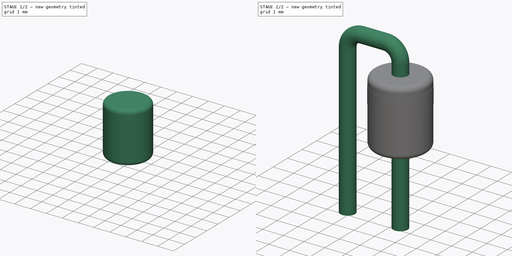
[diagram: build sequence overview — one tinted view per stage of 2, left to right]
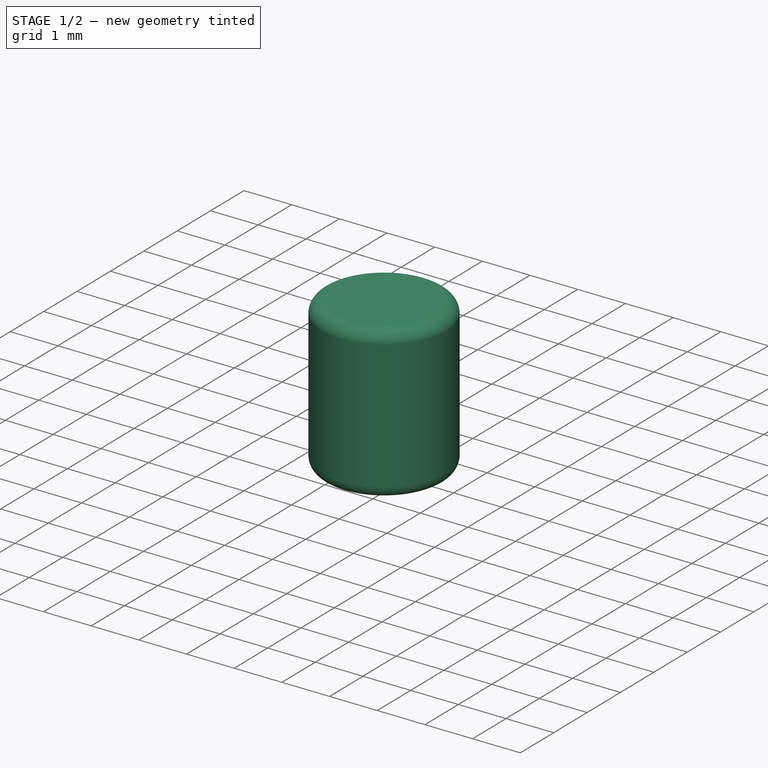
[diagram: stage 1 of 2 — iso view after this stage's code; geometry added in this stage tinted green]
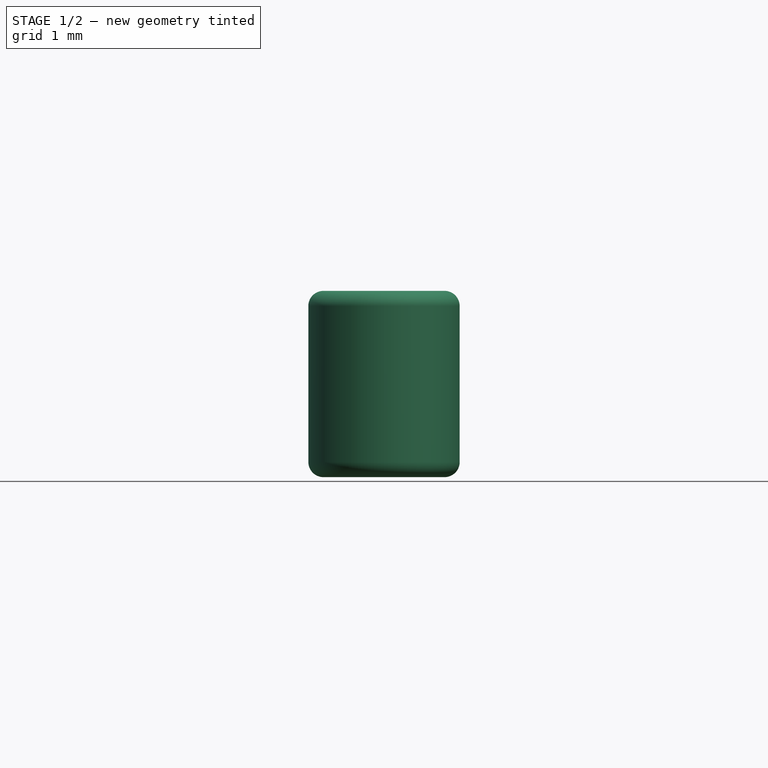
[diagram: stage 1 of 2 — front view after this stage's code; geometry added in this stage tinted green]
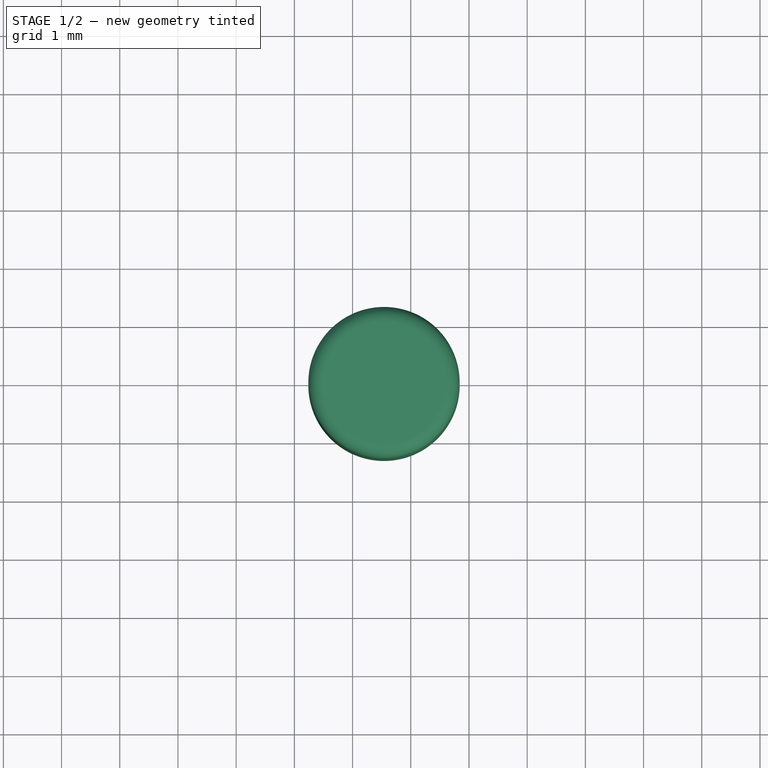
[diagram: stage 1 of 2 — top view after this stage's code; geometry added in this stage tinted green]
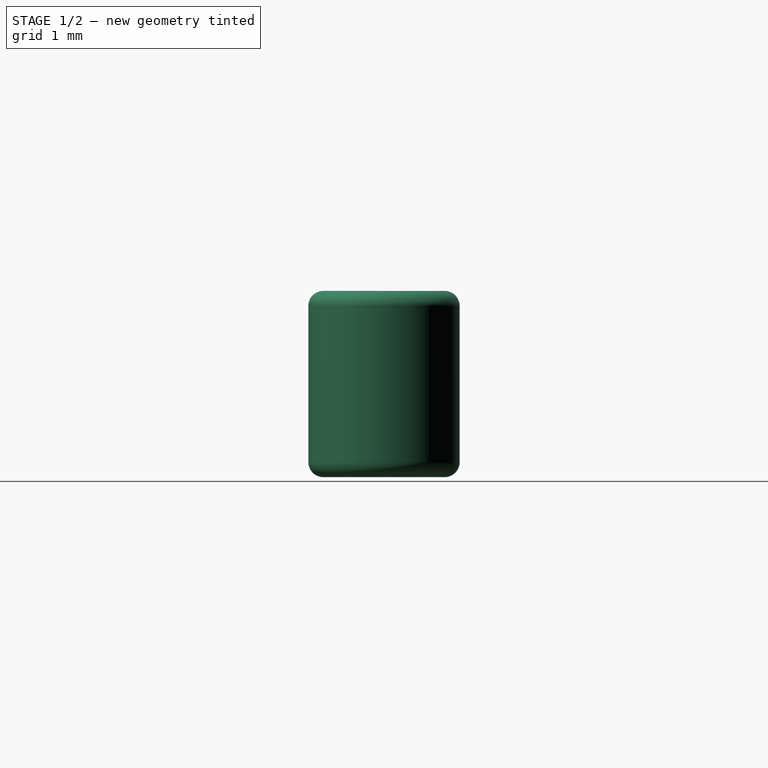
[diagram: stage 1 of 2 — right view after this stage's code; geometry added in this stage tinted green]
FCSTD DOCUMENT  (FreeCAD 0.16R6703 (Git))
Label: Diode_ver_glass_KathodeUp
License: All rights reserved
LicenseURL: http://en.wikipedia.org/wiki/All_rights_reserved
objects: Sketcher::SketchObject×4, PartDesign::Revolution×2, Spreadsheet::Sheet×1, Part::Sweep×1, PartDesign::Fillet×1
note: 10 computed .brp shape members not serialized (recipe doc carries the construction recipe); baked Part::Feature solids carry a one-line shape summary decoded from their .brp

FEATURE [Sketcher::SketchObject] Sketch002
  Placement = pos=(0,0,0) rot=(1,0,0;1.5708rad)
  expr: Constraints[13] = Spreadsheet.RM
  expr: Constraints[9] = Spreadsheet.L
  expr: Constraints[10] = Spreadsheet.d / 2
  sketch-geometry (5):
    g0: LineSegment StartX=2.54 StartY=3.7 StartZ=0 EndX=3.84 EndY=3.7 EndZ=0
    g1: LineSegment StartX=3.84 StartY=3.7 StartZ=0 EndX=3.84 EndY=0.5 EndZ=0
    g2: LineSegment StartX=3.84 StartY=0.5 StartZ=0 EndX=2.54 EndY=0.5 EndZ=0
    g3: LineSegment StartX=2.54 StartY=0.5 StartZ=0 EndX=2.54 EndY=3.7 EndZ=0
    g4: LineSegment [constr] StartX=2.54 StartY=0.5 StartZ=0 EndX=2.54 EndY=11.9134 EndZ=0
  constraints (15):
    c: Coincident(g0,g1)
    c: Coincident(g1,g2)
    c: Coincident(g2,g3)
    c: Coincident(g3,g0)
    c: Horizontal(g0)
    c: Horizontal(g2)
    c: Vertical(g1)
    c: Vertical(g3)
    c: DistanceY(g-1,g2) = 0.5
    c: DistanceY(g1,g1) = 3.2
    c: DistanceX(g0,g0) = 1.3
    c: PointOnObject(g4,g3)
    c: Vertical(g4)
    c: DistanceX(g-1,g4) = 2.54
    c: Coincident(g4,g2)
FEATURE [PartDesign::Revolution] Revolution
  Angle = 360
  Axis = (0,0,11.4134)
  Base = (2.54,0,0.5)
  Placement = pos=(0,0,0) rot=(1,0,0;1.5708rad)
  ReferenceAxis = -> Sketch002 [Axis0]
  Reversed = true
  Sketch = -> Sketch002
FEATURE [PartDesign::Fillet] Fillet
  Base = -> Revolution [Edge1,Edge2]
  Placement = pos=(0,0,0) rot=(1,0,0;1.5708rad)
  Radius = 0.26
  expr: Radius = Spreadsheet.d * 0.1
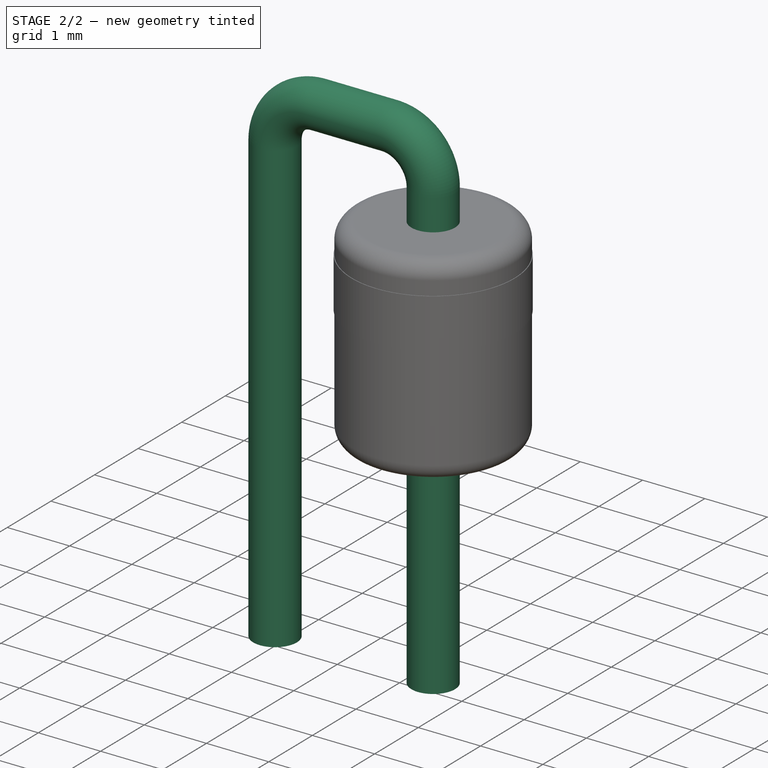
[diagram: stage 2 of 2 — iso view after this stage's code; geometry added in this stage tinted green]
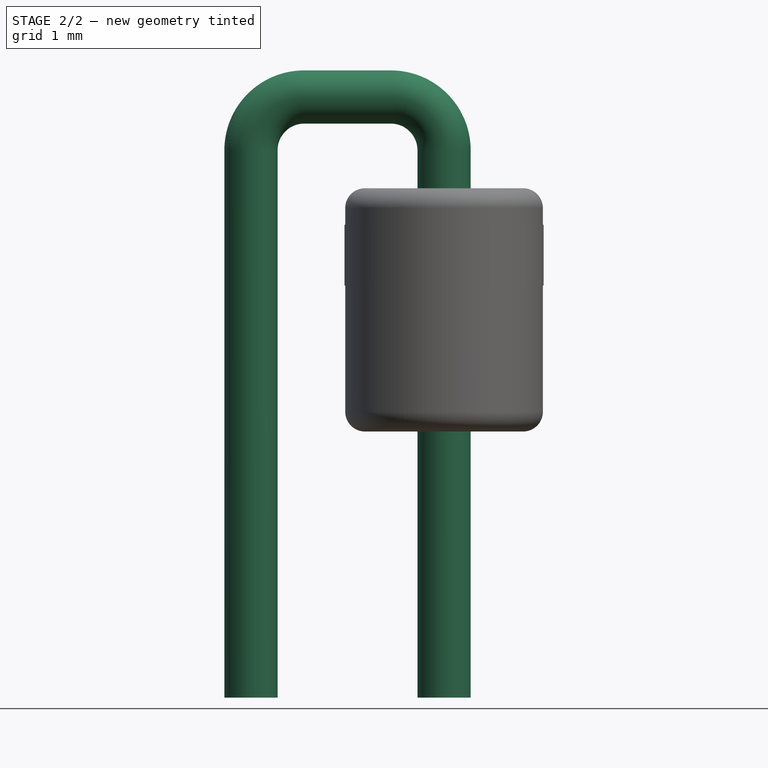
[diagram: stage 2 of 2 — front view after this stage's code; geometry added in this stage tinted green]
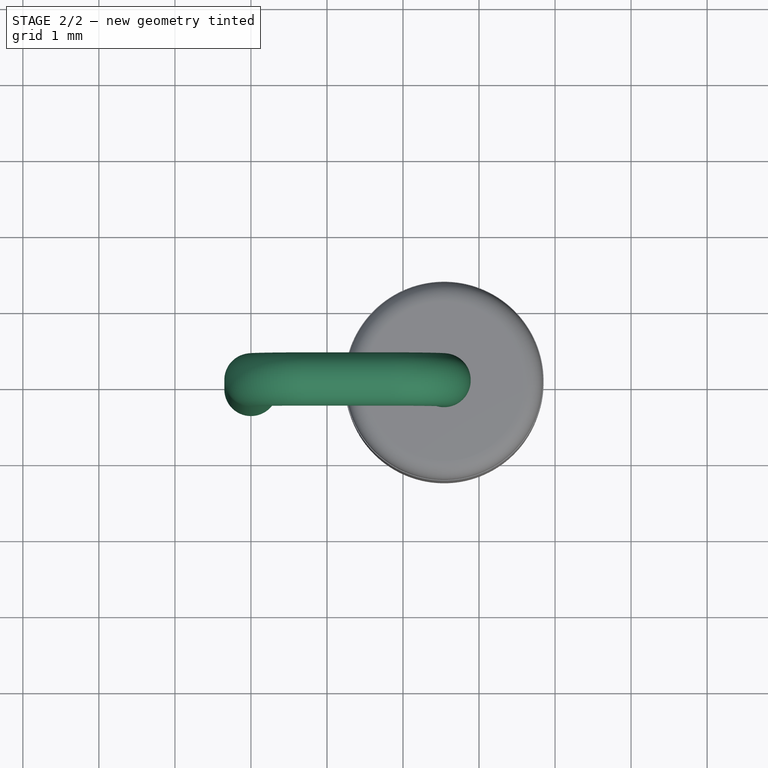
[diagram: stage 2 of 2 — top view after this stage's code; geometry added in this stage tinted green]
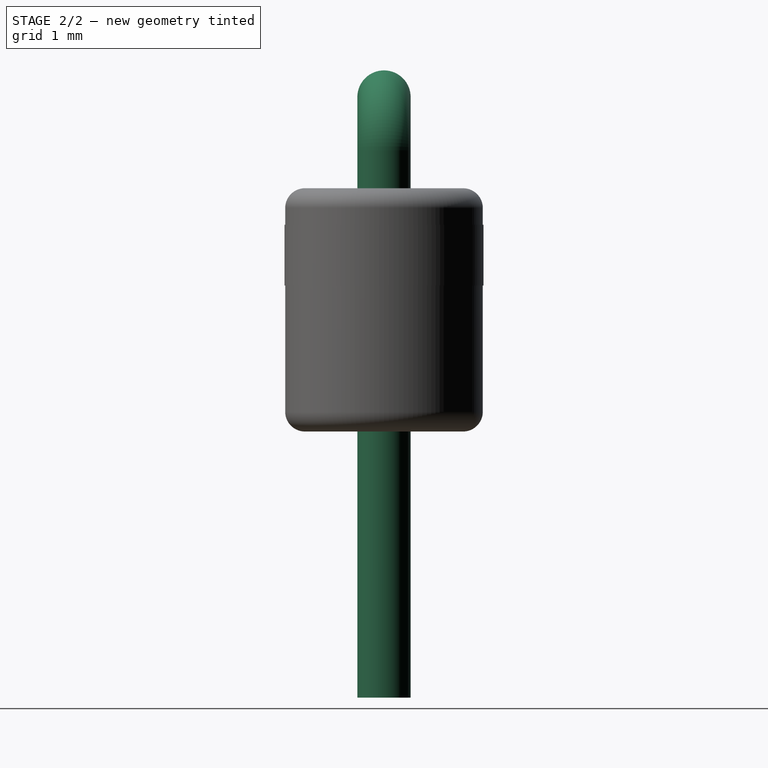
[diagram: stage 2 of 2 — right view after this stage's code; geometry added in this stage tinted green]
FEATURE [Spreadsheet::Sheet] Spreadsheet
  cells = A1=L; B1(L)=3.2; A2=d; B2(d)=2.6; C2(d2)=0; A3=RM; B3(RM)=2.54; A4=d_wire; B4(d_wire)=0.7
FEATURE [Sketcher::SketchObject] Sketch
  Placement = pos=(0,0,0) rot=(1,0,0;1.5708rad)
  expr: Constraints[7] = Spreadsheet.RM
  expr: Constraints[17] = Spreadsheet.d_wire * 1
  expr: Constraints[5] = Spreadsheet.L + 1
  sketch-geometry (5):
    g0: LineSegment StartX=0 StartY=-3 StartZ=0 EndX=0 EndY=4.2 EndZ=0
    g1: LineSegment StartX=2.54 StartY=-3 StartZ=0 EndX=2.54 EndY=4.2 EndZ=0
    g2: ArcOfCircle CenterX=0.7 CenterY=4.2 CenterZ=0 NormalX=0 NormalY=0 NormalZ=1 Radius=0.7 StartAngle=1.5708 EndAngle=3.14159
    g3: ArcOfCircle CenterX=1.84 CenterY=4.2 CenterZ=0 NormalX=0 NormalY=0 NormalZ=1 Radius=0.7 StartAngle=0 EndAngle=1.5708
    g4: LineSegment StartX=0.7 StartY=4.9 StartZ=0 EndX=1.84 EndY=4.9 EndZ=0
  constraints (18):
    c: PointOnObject(g0,g-2)
    c: PointOnObject(g0,g-2)
    c: Vertical(g1)
    c: DistanceY(g0,g1) = 0
    c: DistanceY(g0,g-1) = 3
    c: DistanceY(g-1,g0) = 4.2
    c: DistanceY(g1,g0) = 0
    c: DistanceX(g0,g1) = 2.54
    c: Coincident(g2,g0)
    c: Coincident(g3,g1)
    c: Coincident(g4,g2)
    c: Coincident(g4,g3)
    c: Horizontal(g4)
    c: DistanceY(g0,g2) = 0
    c: DistanceY(g3,g1) = 0
    c: DistanceX(g2,g2) = 0
    c: DistanceX(g3,g3) = 0
    c: DistanceX(g0,g2) = 0.7
FEATURE [Sketcher::SketchObject] Sketch001
  expr: Constraints[1] = Spreadsheet.d_wire / 2
  sketch-geometry (1):
    g0: Circle CenterX=0 CenterY=0 CenterZ=0 NormalX=0 NormalY=0 NormalZ=1 Radius=0.35
  constraints (2):
    c: Coincident(g0,g-1)
    c: Radius(g0) = 0.35
FEATURE [Part::Sweep] Sweep
  Frenet = false
  Sections = -> [Sketch001]
  Solid = true
  Spine = -> Sketch [Edge1,Edge2,Edge3,Edge4,Edge5]
  Transition = 1
FEATURE [Sketcher::SketchObject] Sketch003
  Placement = pos=(0,0,0) rot=(1,0,0;1.5708rad)
  expr: Constraints[13] = Spreadsheet.L * 0.85 + 0.5
  expr: Constraints[12] = Spreadsheet.d / 2 - 0.01
  expr: Constraints[1] = Spreadsheet.L * 0.25
  expr: Constraints[3] = Spreadsheet.RM
  sketch-geometry (5):
    g0: LineSegment StartX=3.85 StartY=3.22 StartZ=0 EndX=3.85 EndY=2.42 EndZ=0
    g1: LineSegment [constr] StartX=2.54 StartY=5.9 StartZ=0 EndX=2.54 EndY=11.9134 EndZ=0
    g2: LineSegment StartX=3.83 StartY=3.22 StartZ=0 EndX=3.83 EndY=2.42 EndZ=0
    g3: LineSegment StartX=3.83 StartY=3.22 StartZ=0 EndX=3.85 EndY=3.22 EndZ=0
    g4: LineSegment StartX=3.83 StartY=2.42 StartZ=0 EndX=3.85 EndY=2.42 EndZ=0
  constraints (14):
    c: Vertical(g0)
    c: DistanceY(g0,g0) = 0.8
    c: Vertical(g1)
    c: DistanceX(g-1,g1) = 2.54
    c: Vertical(g2)
    c: DistanceX(g2,g0) = 0.02
    c: Coincident(g3,g2)
    c: Coincident(g3,g0)
    c: Horizontal(g3)
    c: Coincident(g4,g2)
    c: Coincident(g4,g0)
    c: Horizontal(g4)
    c: DistanceX(g1,g2) = 1.29
    c: DistanceY(g-1,g0) = 3.22
FEATURE [PartDesign::Revolution] Revolution001
  Angle = 360
  Axis = (0,0,6.01339)
  Base = (2.54,0,5.9)
  Placement = pos=(0,0,0) rot=(1,0,0;1.5708rad)
  ReferenceAxis = -> Sketch003 [Axis0]
  Reversed = true
  Sketch = -> Sketch003
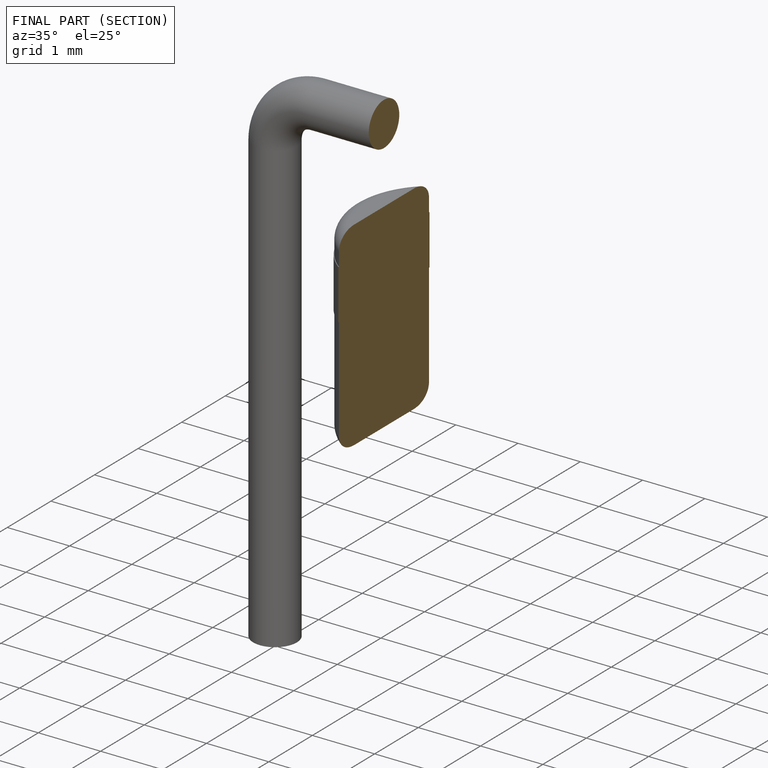
[diagram: finished part — half-section view (interior)]
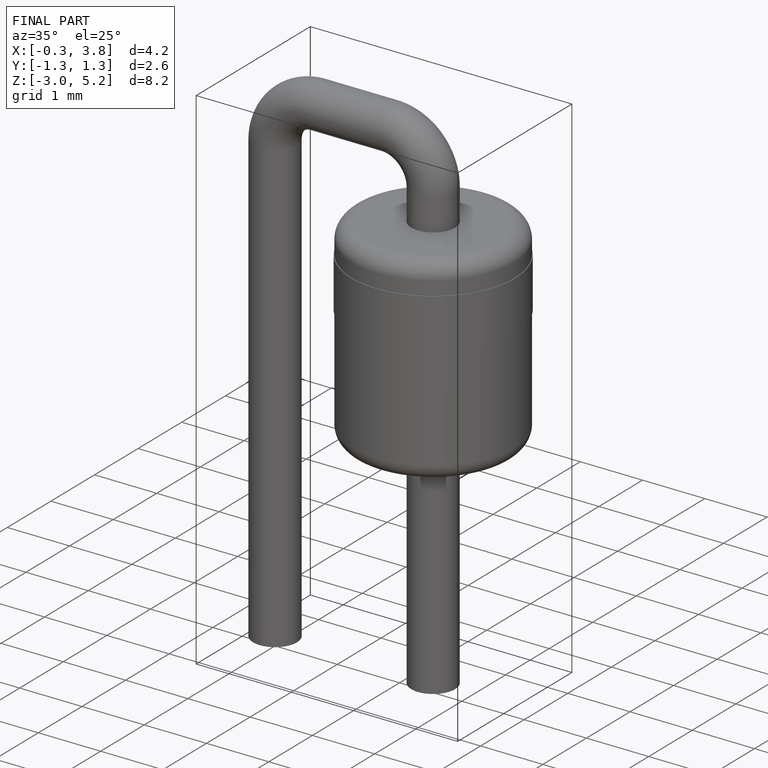
[diagram: finished part — iso view with bounding-box wireframe]
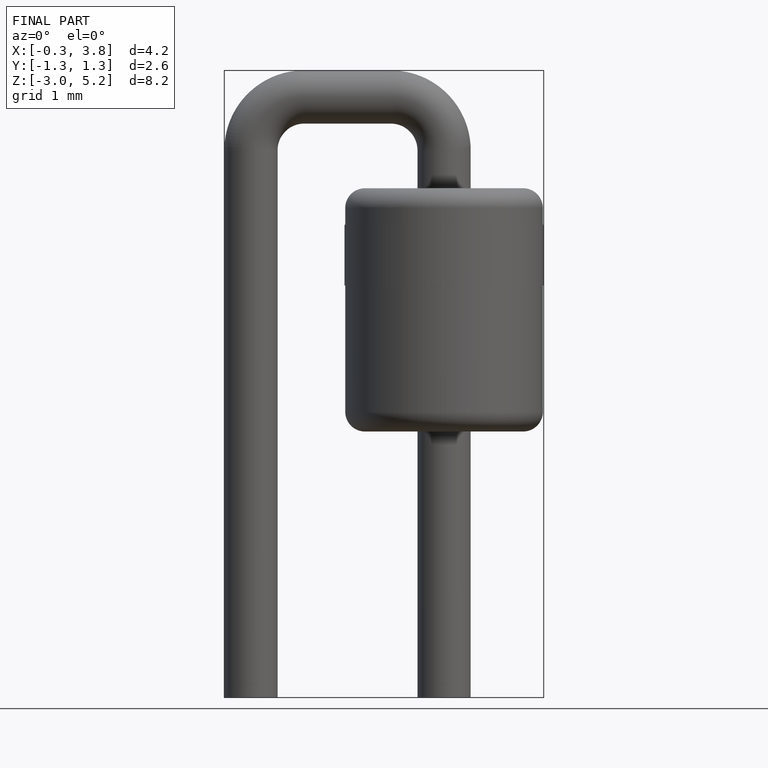
[diagram: finished part — front view with bounding-box wireframe]
